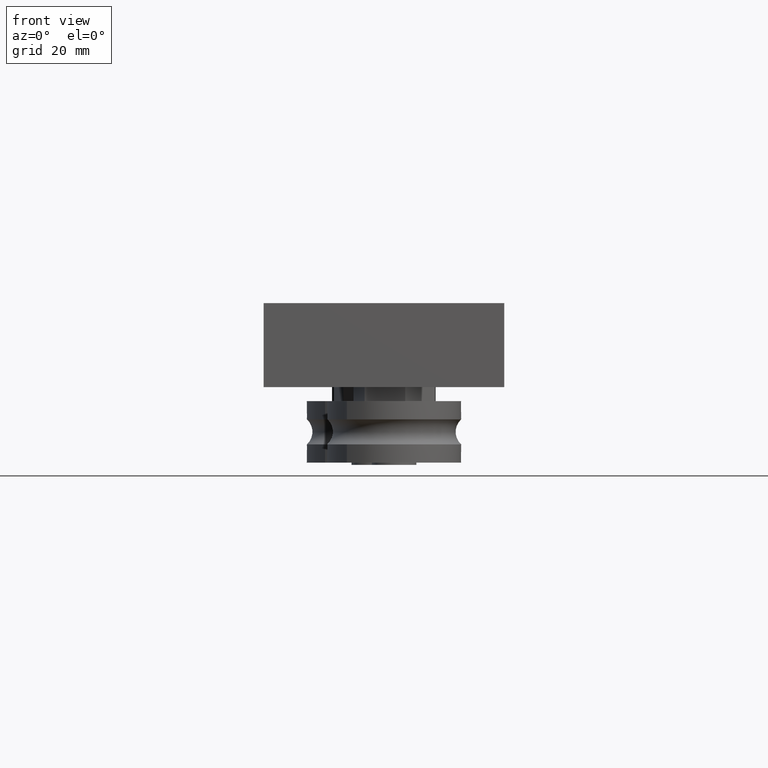
[diagram: clean part render]
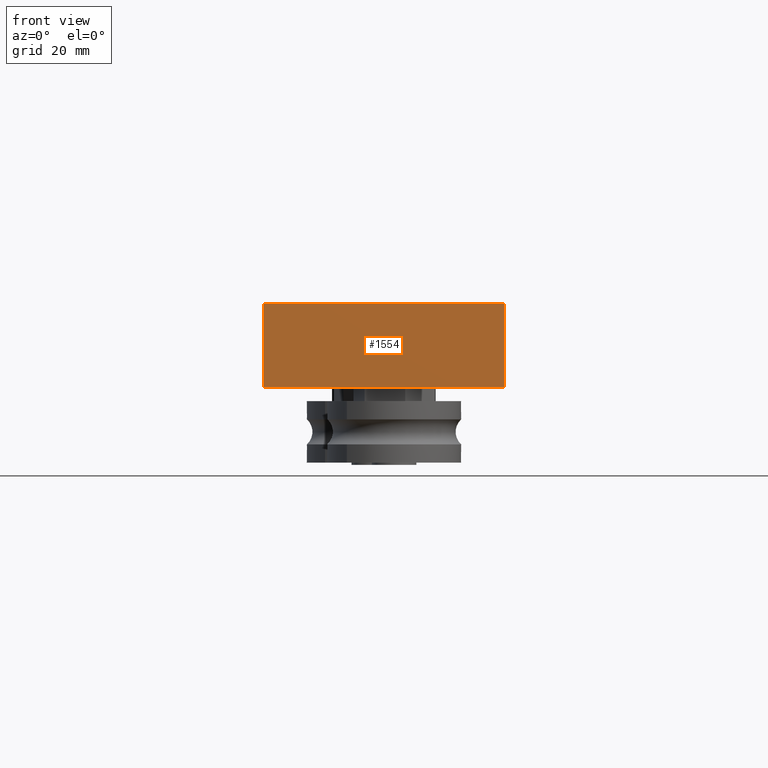
[diagram: same view with one face highlighted and labeled with its STEP entity id]
A machine part, front view. The second image highlights one B-rep face of the part: STEP entity #1554.
In plain terms, the highlighted planar face has unit normal (-0, -1, 0).
Its self-contained STEP definition (entity closure, byte-faithful):
#140=LINE('',#2685,#242);
#144=LINE('',#2693,#246);
#150=LINE('',#2704,#252);
#151=LINE('',#2706,#253);
#242=VECTOR('',#2170,10.);
#246=VECTOR('',#2176,10.);
#252=VECTOR('',#2186,10.);
#253=VECTOR('',#2189,10.);
#436=FACE_OUTER_BOUND('',#549,.T.);
#549=EDGE_LOOP('',(#1171,#1172,#1173,#1174));
#776=VERTEX_POINT('',#2683);
#777=VERTEX_POINT('',#2684);
#780=VERTEX_POINT('',#2692);
#783=VERTEX_POINT('',#2702);
#924=EDGE_CURVE('',#776,#777,#140,.T.);
#928=EDGE_CURVE('',#780,#777,#144,.T.);
#934=EDGE_CURVE('',#776,#783,#150,.T.);
#935=EDGE_CURVE('',#780,#783,#151,.T.);
#1171=ORIENTED_EDGE('',*,*,#934,.T.);
#1172=ORIENTED_EDGE('',*,*,#935,.F.);
#1173=ORIENTED_EDGE('',*,*,#928,.T.);
#1174=ORIENTED_EDGE('',*,*,#924,.F.);
#1487=PLANE('',#1894);
#1554=ADVANCED_FACE('',(#436),#1487,.T.);
#1894=AXIS2_PLACEMENT_3D('',#2705,#2187,#2188);
#2170=DIRECTION('',(1.,0.,4.13106241720988E-16));
#2176=DIRECTION('',(0.,-1.,0.));
#2186=DIRECTION('',(0.,1.,0.));
#2187=DIRECTION('center_axis',(4.13106241720988E-16,0.,-1.));
#2188=DIRECTION('ref_axis',(-1.,0.,-4.13106241720988E-16));
#2189=DIRECTION('',(-1.,0.,-4.13106241720988E-16));
#2683=CARTESIAN_POINT('',(-21.5,-7.5,-60.));
#2684=CARTESIAN_POINT('',(21.5,-7.5,-60.));
#2685=CARTESIAN_POINT('',(21.5,-7.5,-60.));
#2692=CARTESIAN_POINT('',(21.5,7.5,-60.));
#2693=CARTESIAN_POINT('',(21.5,0.,-60.));
#2702=CARTESIAN_POINT('',(-21.5,7.5,-60.));
#2704=CARTESIAN_POINT('',(-21.5,0.,-60.));
#2705=CARTESIAN_POINT('Origin',(21.5,0.,-60.));
#2706=CARTESIAN_POINT('',(21.5,7.5,-60.));